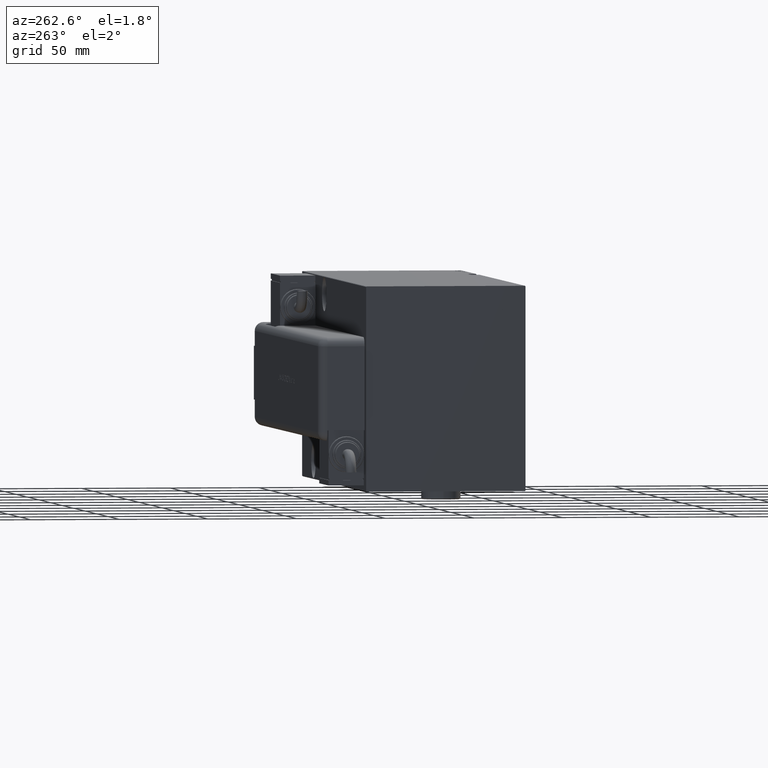
[diagram: clean part render]
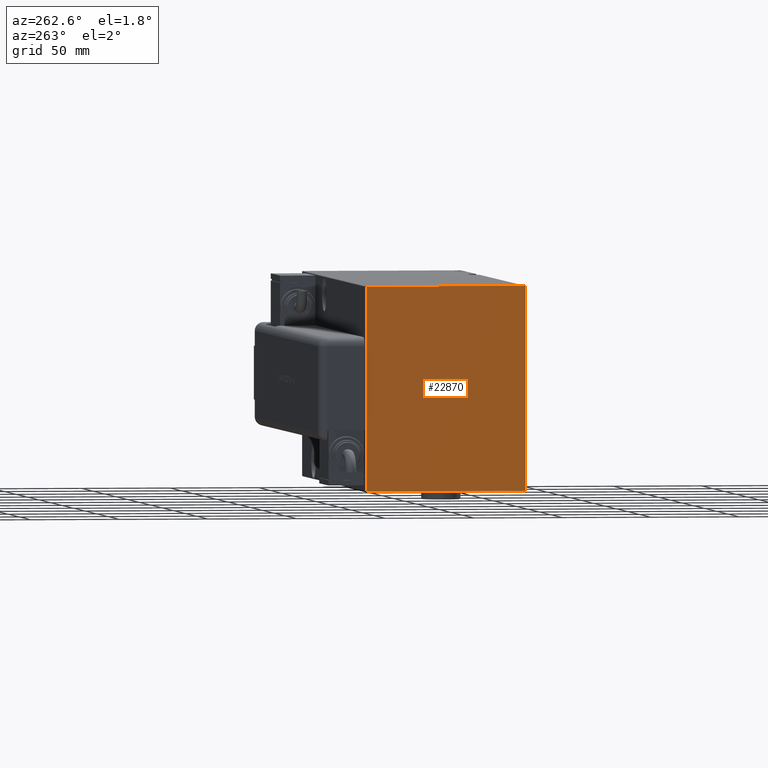
[diagram: same view with one face highlighted and labeled with its STEP entity id]
A machine part, auxiliary view. The second image highlights one B-rep face of the part: STEP entity #22870.
In plain terms, the highlighted planar face has unit normal (-1, -0, 0).
Its self-contained STEP definition (entity closure, byte-faithful):
#1352 = AXIS2_PLACEMENT_3D ( 'NONE', #1579, #37101, #13290 ) ;
#1579 = CARTESIAN_POINT ( 'NONE',  ( 278.0000000000000000, 0.000000000000000000, 0.000000000000000000 ) ) ;
#1680 = ORIENTED_EDGE ( 'NONE', *, *, #7926, .T. ) ;
#2239 = VERTEX_POINT ( 'NONE', #30178 ) ;
#2618 = DIRECTION ( 'NONE',  ( 0.000000000000000000, 1.000000000000000000, 0.000000000000000000 ) ) ;
#3204 = CARTESIAN_POINT ( 'NONE',  ( 278.0000000000000000, -51.09999999999792664, -51.10000000000265175 ) ) ;
#4170 = VERTEX_POINT ( 'NONE', #49664 ) ;
#5770 = CARTESIAN_POINT ( 'NONE',  ( 278.0000000000000000, 44.70000000000003126, 57.50000000000000000 ) ) ;
#5800 = LINE ( 'NONE', #20607, #38605 ) ;
#6515 = FACE_OUTER_BOUND ( 'NONE', #13078, .T. ) ;
#7017 = CARTESIAN_POINT ( 'NONE',  ( 278.0000000000000000, 51.10000000000207621, -51.09999999999735110 ) ) ;
#7926 = EDGE_CURVE ( 'NONE', #14343, #2239, #41372, .T. ) ;
#8051 = VECTOR ( 'NONE', #40925, 999.9999999999998863 ) ;
#8265 = VECTOR ( 'NONE', #41884, 1000.000000000000000 ) ;
#8301 = VERTEX_POINT ( 'NONE', #44034 ) ;
#8883 = VECTOR ( 'NONE', #2618, 1000.000000000000000 ) ;
#9221 = CARTESIAN_POINT ( 'NONE',  ( 278.0000000000000000, 45.00000000000000000, -57.50000000000000711 ) ) ;
#11886 = CARTESIAN_POINT ( 'NONE',  ( 278.0000000000000000, -45.00000000000000000, -57.50000000000000711 ) ) ;
#11976 = ORIENTED_EDGE ( 'NONE', *, *, #58049, .T. ) ;
#12157 = LINE ( 'NONE', #3204, #52728 ) ;
#13035 = LINE ( 'NONE', #50435, #39985 ) ;
#13078 = EDGE_LOOP ( 'NONE', ( #14581, #11976, #1680, #43179, #49975, #47547, #31899, #41773 ) ) ;
#13255 = EDGE_CURVE ( 'NONE', #13774, #8301, #5800, .T. ) ;
#13290 = DIRECTION ( 'NONE',  ( -0.000000000000000000, 0.000000000000000000, -1.000000000000000000 ) ) ;
#13774 = VERTEX_POINT ( 'NONE', #34992 ) ;
#14343 = VERTEX_POINT ( 'NONE', #40376 ) ;
#14581 = ORIENTED_EDGE ( 'NONE', *, *, #32737, .T. ) ;
#15440 = EDGE_CURVE ( 'NONE', #32995, #13774, #54547, .T. ) ;
#15767 = CARTESIAN_POINT ( 'NONE',  ( 278.0000000000000000, -44.69999999999997442, 57.50000000000000711 ) ) ;
#15940 = VERTEX_POINT ( 'NONE', #5770 ) ;
#17125 = CARTESIAN_POINT ( 'NONE',  ( 278.0000000000000000, -51.10000000000207621, 51.09999999999735110 ) ) ;
#20607 = CARTESIAN_POINT ( 'NONE',  ( 278.0000000000000000, -45.00000000000000000, 57.50000000000000711 ) ) ;
#22870 = ADVANCED_FACE ( 'NONE', ( #6515 ), #43924, .T. ) ;
#24451 = VERTEX_POINT ( 'NONE', #35473 ) ;
#24835 = EDGE_CURVE ( 'NONE', #15940, #32995, #36307, .T. ) ;
#26495 = VECTOR ( 'NONE', #28077, 1000.000000000000000 ) ;
#28077 = DIRECTION ( 'NONE',  ( 0.000000000000000000, 0.000000000000000000, 1.000000000000000000 ) ) ;
#30178 = CARTESIAN_POINT ( 'NONE',  ( 278.0000000000000000, 45.00000000000000000, 57.20000000000001705 ) ) ;
#30490 = DIRECTION ( 'NONE',  ( 0.000000000000000000, 0.000000000000000000, -1.000000000000000000 ) ) ;
#31899 = ORIENTED_EDGE ( 'NONE', *, *, #13255, .T. ) ;
#32198 = DIRECTION ( 'NONE',  ( -0.000000000000000000, -0.7071067811865556774, 0.7071067811865392461 ) ) ;
#32737 = EDGE_CURVE ( 'NONE', #24451, #4170, #41243, .T. ) ;
#32995 = VERTEX_POINT ( 'NONE', #15767 ) ;
#34992 = CARTESIAN_POINT ( 'NONE',  ( 278.0000000000000000, -45.00000000000000000, 57.19999999999998863 ) ) ;
#35473 = CARTESIAN_POINT ( 'NONE',  ( 278.0000000000000000, -44.69999999999997442, -57.50000000000000711 ) ) ;
#36307 = LINE ( 'NONE', #41562, #8265 ) ;
#37101 = DIRECTION ( 'NONE',  ( 1.000000000000000000, 0.000000000000000000, -0.000000000000000000 ) ) ;
#38605 = VECTOR ( 'NONE', #30490, 1000.000000000000000 ) ;
#39698 = DIRECTION ( 'NONE',  ( -0.000000000000000000, 0.7071067811865802133, -0.7071067811865149322 ) ) ;
#39985 = VECTOR ( 'NONE', #32198, 1000.000000000000114 ) ;
#40376 = CARTESIAN_POINT ( 'NONE',  ( 278.0000000000000000, 45.00000000000000000, -57.19999999999998863 ) ) ;
#40925 = DIRECTION ( 'NONE',  ( -0.000000000000000000, -0.7071067811865149322, -0.7071067811865802133 ) ) ;
#41243 = LINE ( 'NONE', #11886, #8883 ) ;
#41372 = LINE ( 'NONE', #9221, #26495 ) ;
#41562 = CARTESIAN_POINT ( 'NONE',  ( 278.0000000000000000, 45.00000000000000000, 57.50000000000000000 ) ) ;
#41773 = ORIENTED_EDGE ( 'NONE', *, *, #44267, .T. ) ;
#41884 = DIRECTION ( 'NONE',  ( 0.000000000000000000, -1.000000000000000000, 7.709882115452476934E-17 ) ) ;
#43179 = ORIENTED_EDGE ( 'NONE', *, *, #48206, .T. ) ;
#43924 = PLANE ( 'NONE',  #1352 ) ;
#44034 = CARTESIAN_POINT ( 'NONE',  ( 278.0000000000000000, -45.00000000000000000, -57.19999999999998863 ) ) ;
#44267 = EDGE_CURVE ( 'NONE', #8301, #24451, #12157, .T. ) ;
#47547 = ORIENTED_EDGE ( 'NONE', *, *, #15440, .T. ) ;
#48206 = EDGE_CURVE ( 'NONE', #2239, #15940, #13035, .T. ) ;
#49055 = DIRECTION ( 'NONE',  ( -0.000000000000000000, 0.7071067811865149322, 0.7071067811865802133 ) ) ;
#49664 = CARTESIAN_POINT ( 'NONE',  ( 278.0000000000000000, 44.69999999999997442, -57.50000000000000711 ) ) ;
#49975 = ORIENTED_EDGE ( 'NONE', *, *, #24835, .T. ) ;
#50435 = CARTESIAN_POINT ( 'NONE',  ( 278.0000000000000000, 51.09999999999949694, 51.10000000000068354 ) ) ;
#52728 = VECTOR ( 'NONE', #39698, 999.9999999999998863 ) ;
#53404 = LINE ( 'NONE', #7017, #56198 ) ;
#54547 = LINE ( 'NONE', #17125, #8051 ) ;
#56198 = VECTOR ( 'NONE', #49055, 999.9999999999998863 ) ;
#58049 = EDGE_CURVE ( 'NONE', #4170, #14343, #53404, .T. ) ;